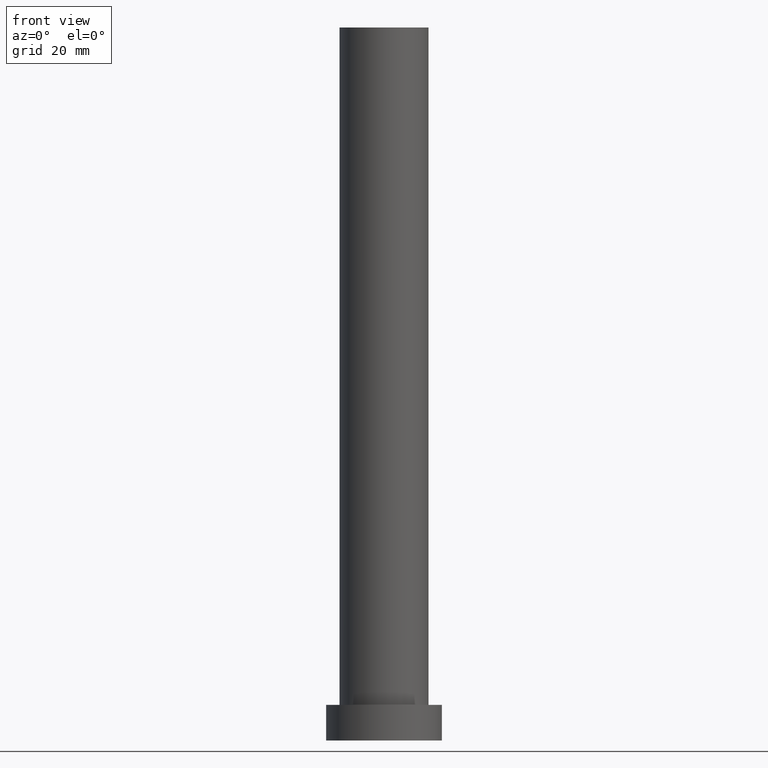
[diagram: clean part render]
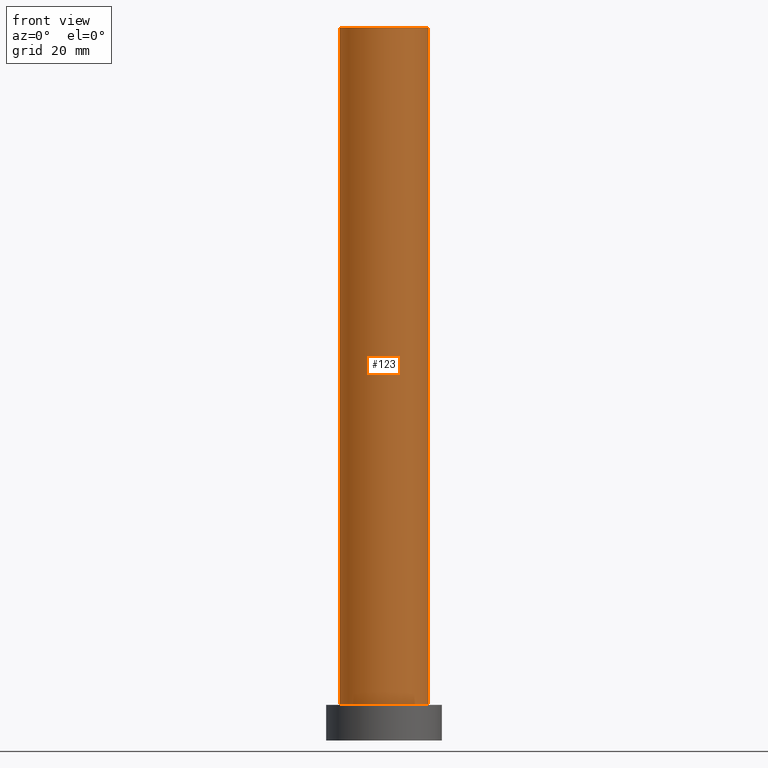
[diagram: same view with one face highlighted and labeled with its STEP entity id]
A machine part, front view. The second image highlights one B-rep face of the part: STEP entity #123.
In plain terms, the highlighted cylindrical surface (partial cylindrical patch) has radius 10 mm, axis along (-0, -0, -1).
Its self-contained STEP definition (entity closure, byte-faithful):
#3 = CARTESIAN_POINT ( 'NONE',  ( 0.000000000000000000, 0.000000000000000000, 8.000000000000000000 ) ) ;
#4 = CARTESIAN_POINT ( 'NONE',  ( 10.00000000000000000, 1.224646799147353256E-15, 8.000000000000000000 ) ) ;
#13 = FACE_OUTER_BOUND ( 'NONE', #90, .T. ) ;
#15 = DIRECTION ( 'NONE',  ( -0.000000000000000000, -0.000000000000000000, -1.000000000000000000 ) ) ;
#26 = CIRCLE ( 'NONE', #61, 10.00000000000000000 ) ;
#43 = CARTESIAN_POINT ( 'NONE',  ( -10.00000000000000000, 0.000000000000000000, 160.0000000000000000 ) ) ;
#50 = CYLINDRICAL_SURFACE ( 'NONE', #180, 10.00000000000000000 ) ;
#53 = AXIS2_PLACEMENT_3D ( 'NONE', #162, #74, #216 ) ;
#61 = AXIS2_PLACEMENT_3D ( 'NONE', #3, #128, #84 ) ;
#64 = DIRECTION ( 'NONE',  ( -0.000000000000000000, -0.000000000000000000, -1.000000000000000000 ) ) ;
#74 = DIRECTION ( 'NONE',  ( 0.000000000000000000, 0.000000000000000000, 1.000000000000000000 ) ) ;
#76 = ORIENTED_EDGE ( 'NONE', *, *, #151, .T. ) ;
#79 = DIRECTION ( 'NONE',  ( -1.000000000000000000, 0.000000000000000000, 0.000000000000000000 ) ) ;
#84 = DIRECTION ( 'NONE',  ( 1.000000000000000000, 0.000000000000000000, 0.000000000000000000 ) ) ;
#90 = EDGE_LOOP ( 'NONE', ( #172, #141, #192, #76 ) ) ;
#102 = DIRECTION ( 'NONE',  ( -0.000000000000000000, -0.000000000000000000, -1.000000000000000000 ) ) ;
#103 = EDGE_CURVE ( 'NONE', #214, #175, #193, .T. ) ;
#114 = CARTESIAN_POINT ( 'NONE',  ( 0.000000000000000000, 0.000000000000000000, 160.0000000000000000 ) ) ;
#123 = ADVANCED_FACE ( 'NONE', ( #13 ), #50, .T. ) ;
#128 = DIRECTION ( 'NONE',  ( 0.000000000000000000, 0.000000000000000000, 1.000000000000000000 ) ) ;
#134 = VERTEX_POINT ( 'NONE', #197 ) ;
#141 = ORIENTED_EDGE ( 'NONE', *, *, #103, .F. ) ;
#147 = CARTESIAN_POINT ( 'NONE',  ( 10.00000000000000000, 1.224646799147353256E-15, 160.0000000000000000 ) ) ;
#151 = EDGE_CURVE ( 'NONE', #134, #212, #26, .T. ) ;
#162 = CARTESIAN_POINT ( 'NONE',  ( 0.000000000000000000, 0.000000000000000000, 160.0000000000000000 ) ) ;
#163 = VECTOR ( 'NONE', #64, 1000.000000000000000 ) ;
#172 = ORIENTED_EDGE ( 'NONE', *, *, #225, .F. ) ;
#175 = VERTEX_POINT ( 'NONE', #147 ) ;
#180 = AXIS2_PLACEMENT_3D ( 'NONE', #114, #15, #79 ) ;
#190 = CARTESIAN_POINT ( 'NONE',  ( -10.00000000000000000, 0.000000000000000000, 160.0000000000000000 ) ) ;
#192 = ORIENTED_EDGE ( 'NONE', *, *, #219, .T. ) ;
#193 = CIRCLE ( 'NONE', #53, 10.00000000000000000 ) ;
#197 = CARTESIAN_POINT ( 'NONE',  ( -10.00000000000000000, 0.000000000000000000, 8.000000000000000000 ) ) ;
#210 = LINE ( 'NONE', #43, #232 ) ;
#212 = VERTEX_POINT ( 'NONE', #4 ) ;
#214 = VERTEX_POINT ( 'NONE', #190 ) ;
#216 = DIRECTION ( 'NONE',  ( 1.000000000000000000, 0.000000000000000000, 0.000000000000000000 ) ) ;
#219 = EDGE_CURVE ( 'NONE', #214, #134, #210, .T. ) ;
#225 = EDGE_CURVE ( 'NONE', #175, #212, #238, .T. ) ;
#232 = VECTOR ( 'NONE', #102, 1000.000000000000000 ) ;
#238 = LINE ( 'NONE', #239, #163 ) ;
#239 = CARTESIAN_POINT ( 'NONE',  ( 10.00000000000000000, 1.224646799147353256E-15, 160.0000000000000000 ) ) ;